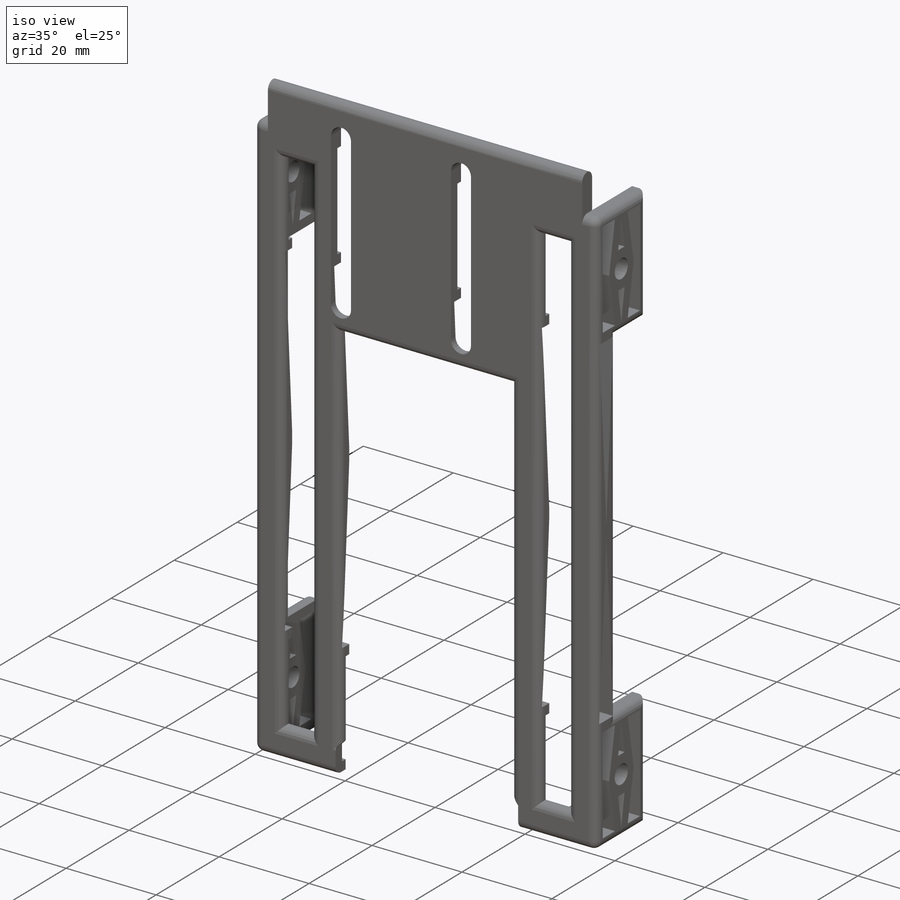
[diagram: iso view]
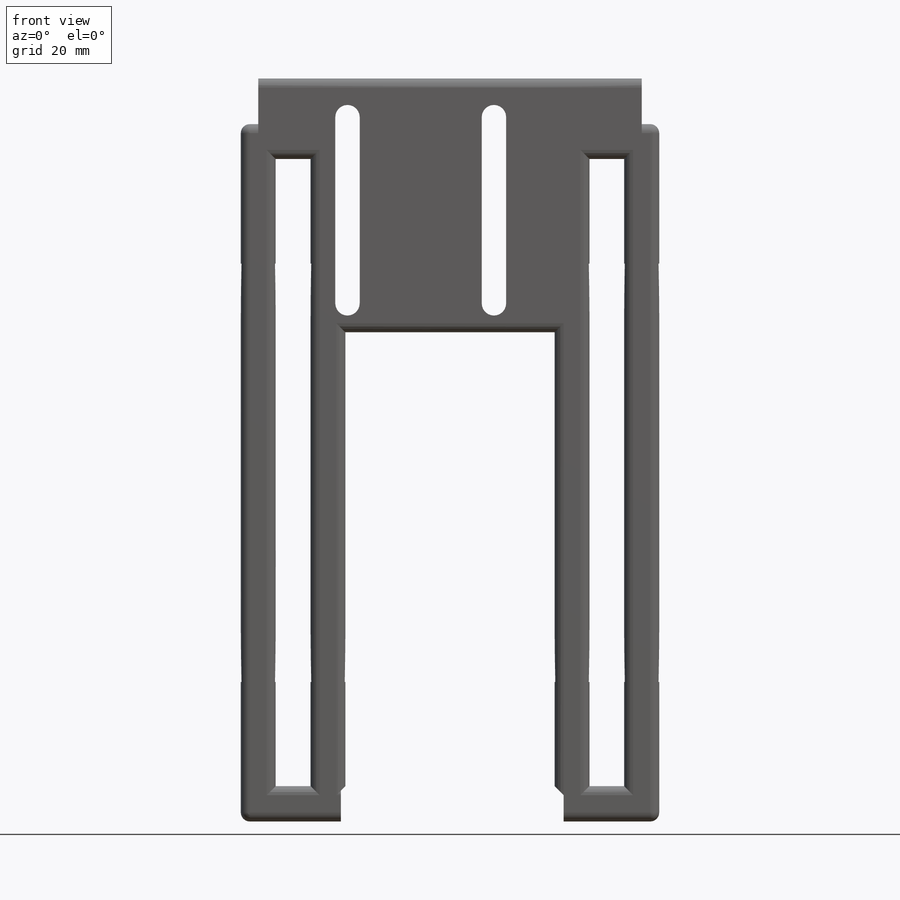
[diagram: front view]
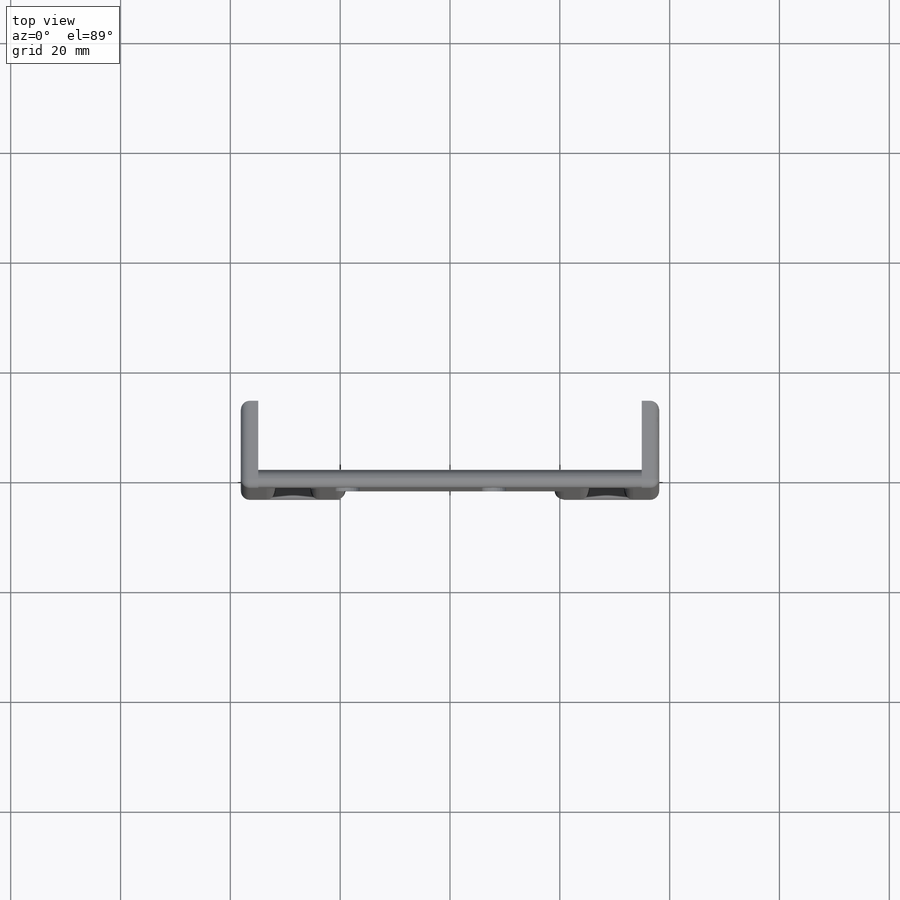
[diagram: top view]
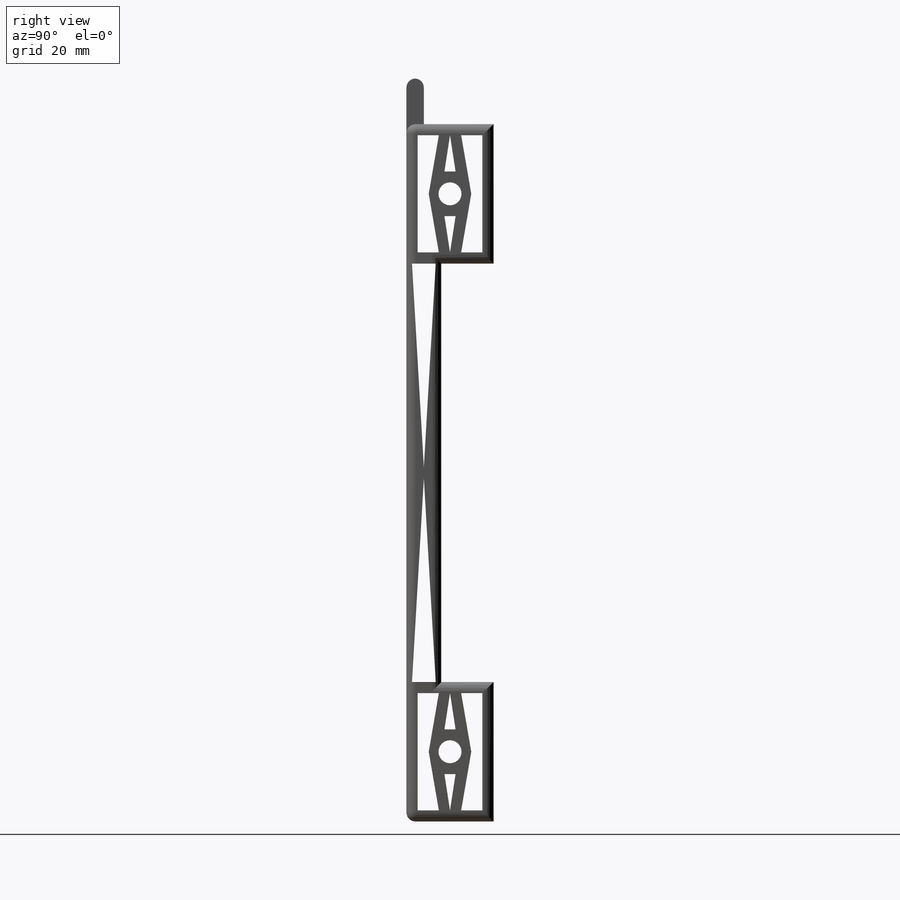
[diagram: right view]
SOLIDWORKS PART (.sldprt)
format: sldprt  version: not decoded by parser v0  size: 908,288 bytes
history: native  units: mm
features: sketch x23, cut_extrude x17, fillet x8, extrude x6, material x1 (+11 scaffold rows collapsed)
feature tree (66):
  scaffold x11  (default folders/planes/origin — collapsed)
  material  "Material <not specified>"
  sketch  "Sketch2"  dims[D1=127.0mm]
  extrude  "Boss-Extrude1"  Depth=3.175mm
  sketch  "Sketch3"  dims[D1=1.5875mm]
  extrude  "Boss-Extrude2"  Depth=12.7mm
  sketch  "Sketch4"  dims[D1=3.175mm]
  extrude  "Boss-Extrude3"  Depth=12.7mm
  sketch  "Sketch5"  dims[D1=0.0mm]
  extrude  "Boss-Extrude4"  Depth=12.7mm
  sketch  "Sketch8"  dims[D1=25.4mm]
  cut_extrude  "Cut-Extrude3"  Depth=3.175mm
  sketch  "Sketch11"  dims[c1.D1=4.191mm c1.D2=4.191mm c1.D3=2.0955mm c2.D1=12.7mm]
  cut_extrude  "Cut-Extrude4"  Depth=194.818mm
  sketch  "Sketch14"
  extrude  "Boss-Extrude5"  Depth=37.592mm
  sketch  "Sketch16"
  cut_extrude  "Cut-Extrude5"  [1 undecoded]
  sketch  "Sketch22"
  extrude  "Boss-Extrude6"  Depth=19.939mm
  sketch  "Sketch24"  dims[D1=9.9695mm]
  cut_extrude  "Cut-Extrude6"  Depth=19.939mm
  sketch  "Sketch25"  dims[c1.D2=4.445mm c1.D1=19.939mm c2.D2=5.969mm]
  cut_extrude  "Cut-Extrude8"  Depth=19.939mm
  sketch  "Sketch28"
  cut_extrude  "Cut-Extrude9"  Depth=19.939mm
  sketch  "Sketch31"  dims[D1=6.35mm]
  cut_extrude  "Cut-Extrude10"  Depth=127.254mm
  sketch  "Sketch35"  dims[D1=6.35mm D2=76.2mm D3=6.35mm]
  cut_extrude  "Cut-Extrude16"  Depth=127.254mm
  sketch  "Sketch37"  dims[D1=3.048mm]
  cut_extrude  "Cut-Extrude17"  Depth=127.254mm
  sketch  "Sketch39"  dims[D1=2.032mm D2=2.032mm D3=2.032mm D4=2.032mm D5=2.032mm D6=2.032mm]
  cut_extrude  "Cut-Extrude18"  Depth=111.252mm
  sketch  "Sketch40"  dims[c1.D1=2.032mm c1.D2=2.032mm c2.D1=~4.402345mm c3.D1=270.0deg c4.D1=2.032mm c4.D2=2.032mm c4.D3=2.032mm c4.D4=2.032mm]
  cut_extrude  "Cut-Extrude19"  Depth=111.252mm
  sketch  "Sketch41"  dims[D1=2.032mm D2=2.032mm D3=2.032mm D4=2.032mm D5=2.032mm D6=2.032mm]
  cut_extrude  "Cut-Extrude20"  Depth=111.252mm
  sketch  "Sketch42"  dims[c1.D1=2.032mm c1.D2=2.032mm c1.D3=2.032mm c1.D4=2.032mm c1.D5=2.032mm c2.D1=2.032mm]
  cut_extrude  "Cut-Extrude21"  Depth=111.252mm
  sketch  "Sketch43"  dims[c1.D1=4.064mm c1.D2=4.064mm c2.D1=1.016mm c2.D2=1.016mm c2.D3=1.016mm c2.D4=1.016mm]
  cut_extrude  "Cut-Extrude22"  Depth=111.252mm
  sketch  "Sketch44"  dims[D1=4.064mm D2=4.064mm D3=1.016mm D4=1.016mm D5=1.016mm D6=1.016mm]
  cut_extrude  "Cut-Extrude23"  Depth=111.252mm
  sketch  "Sketch45"  dims[c1.D1=1.016mm c1.D2=1.016mm c1.D3=1.016mm c1.D4=1.016mm c2.D1=1.016mm c2.D2=1.016mm]
  cut_extrude  "Cut-Extrude24"  Depth=111.252mm
  fillet  "Fillet1"  Radius=1.651mm
  fillet  "Fillet2"  Radius=1.651mm
  fillet  "Fillet3"  Radius=1.651mm
  fillet  "Fillet4"  Radius=1.651mm
  fillet  "Fillet6"  Radius=1.651mm
  fillet  "Fillet7"  Radius=1.651mm
  fillet  "Fillet8"  Radius=1.651mm
  fillet  "Fillet9"  Radius=1.651mm
  sketch  "Sketch46"
  cut_extrude  "Cut-Extrude26"  Depth=15.494mm
decode coverage: 48 of 54 modeling features carry decoded parameters
note: ~ marks probable driven/reference dimensions
note: 1 parameter value undecoded
note: suppression state not decoded; provenance and decode notes live in map.json
